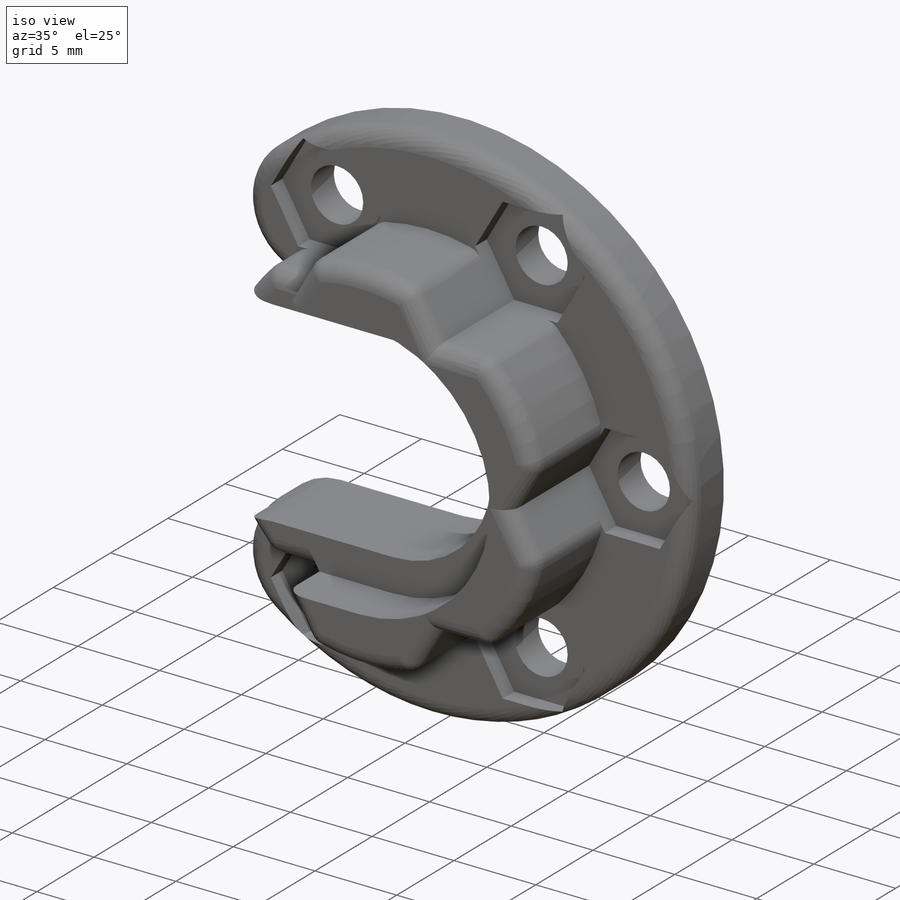
[diagram: iso view]
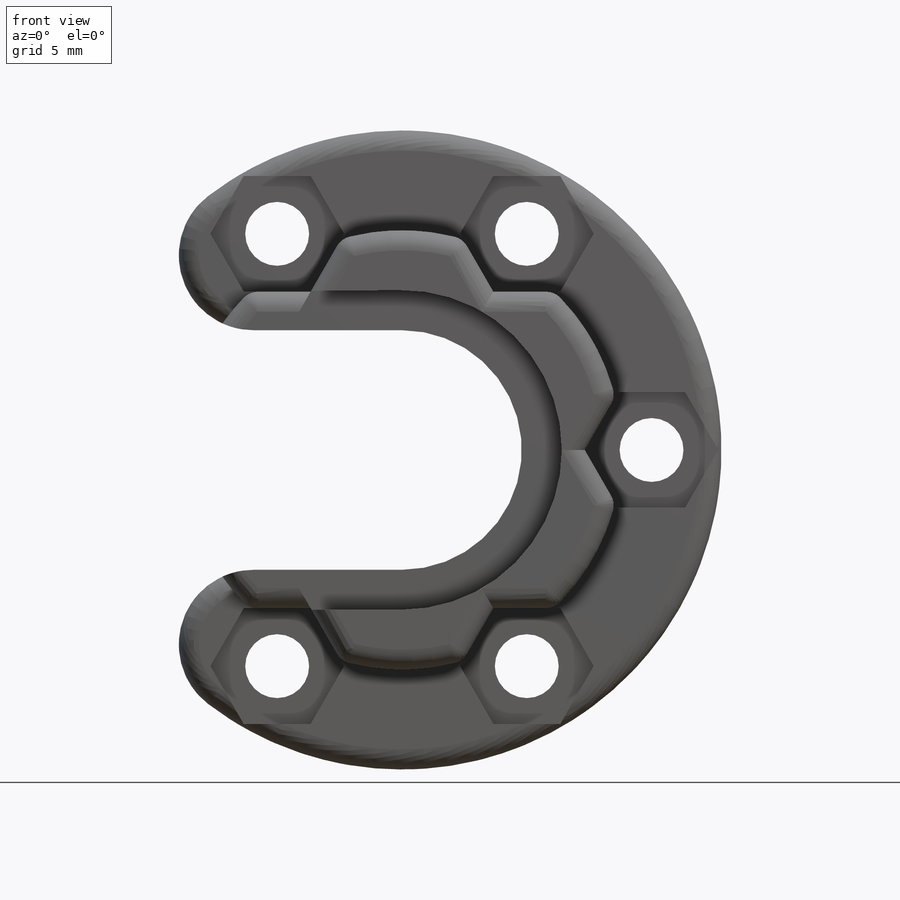
[diagram: front view]
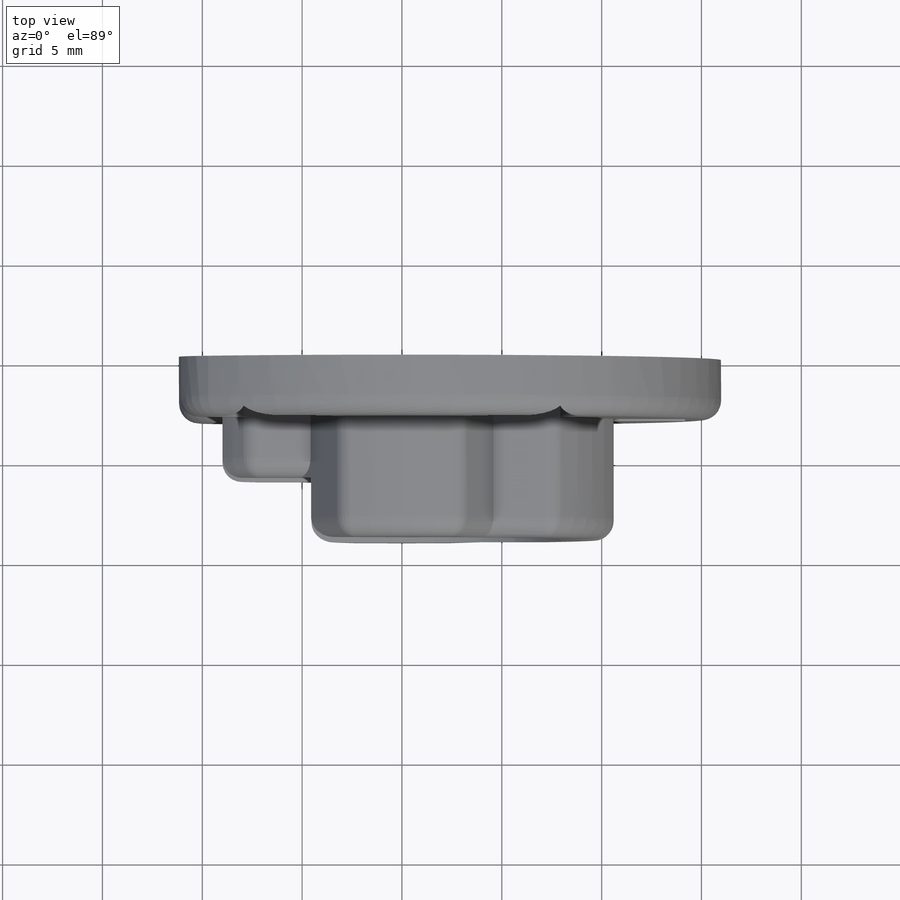
[diagram: top view]
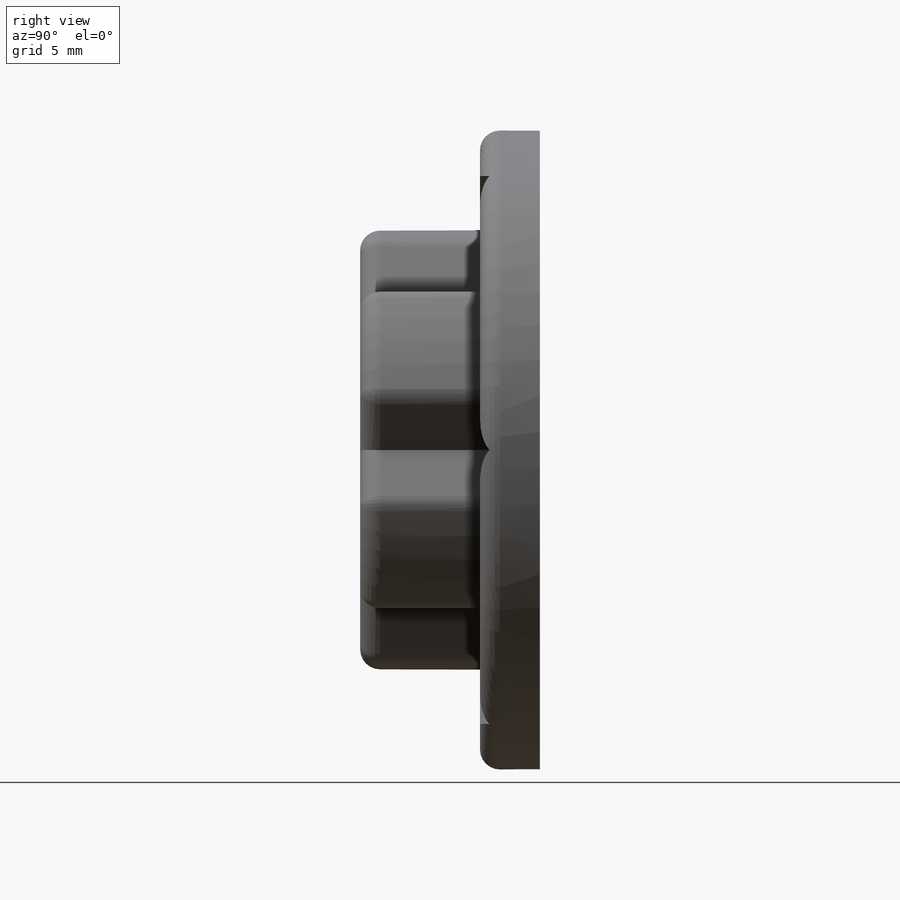
[diagram: right view]
SOLIDWORKS PART (.sldprt)
format: sldprt  version: not decoded by parser v0  size: 425,984 bytes
history: native  units: mm
features: sketch x6, extrude x3, fillet x3, cut_extrude x2, material x1 (+13 scaffold rows collapsed)
feature tree (28):
  scaffold x13  (default folders/planes/origin — collapsed)
  material  "Material <not specified>"
  sketch  "Sketch-Reference"
  sketch  "Sketch4"  dims[D1=0.0mm D2=0.0mm D3=0.0mm D4=0.0mm D5=0.0mm D6=0.0mm D7=0.0mm D8=0.0mm]
  extrude  "Boss-Extrude2"  Depth=3mm
  sketch  "Sketch5"
  extrude  "Boss-Extrude3"  [1 undecoded]
  sketch  "Sketch6"  dims[D1=3.0mm]
  extrude  "Boss-Extrude4"  Depth=3mm
  sketch  "Sketch7"
  cut_extrude  "Cut-Extrude1"  [1 undecoded]
  sketch  "Sketch8"  dims[D1=5.8mm]
  cut_extrude  "Cut-Extrude2"  Depth=1mm
  fillet  "Fillet5"  Radius=1mm
  fillet  "Fillet2"  Radius=1mm
  fillet  "Fillet4"  Radius=1mm
decode coverage: 9 of 14 modeling features carry decoded parameters
note: 2 parameter values undecoded
note: suppression state not decoded; provenance and decode notes live in map.json
